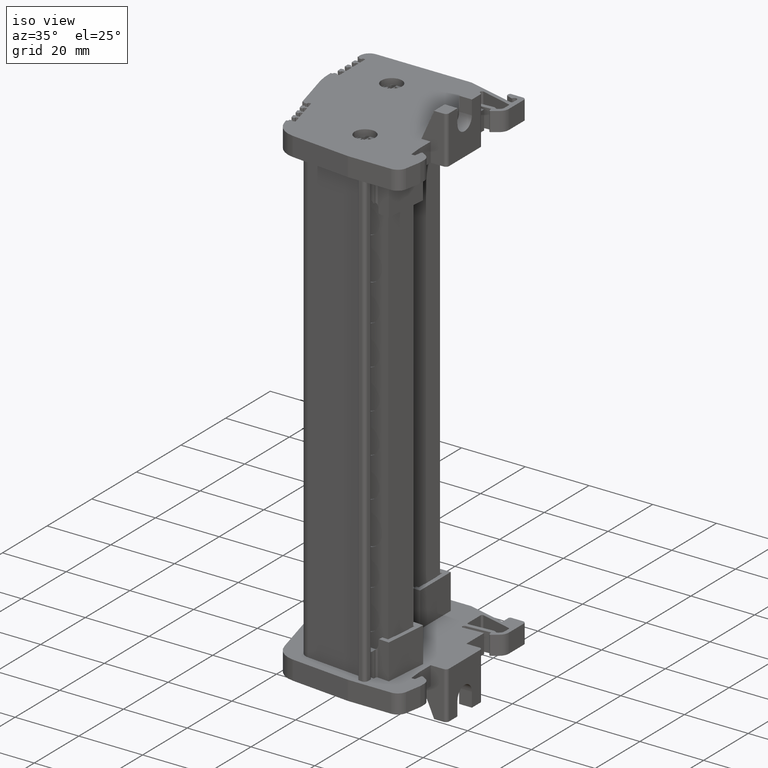
[diagram: clean part render]
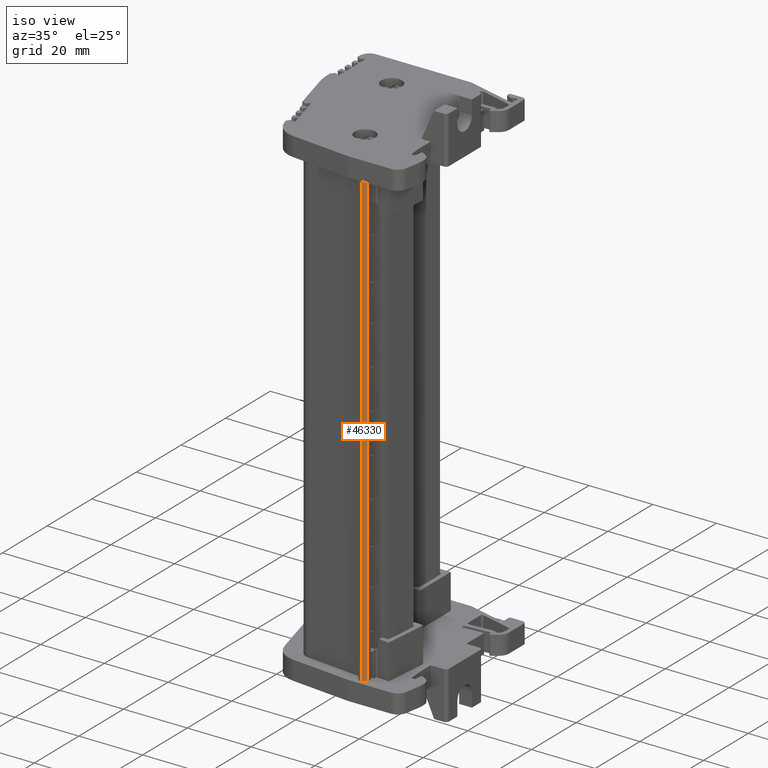
[diagram: same view with one face highlighted and labeled with its STEP entity id]
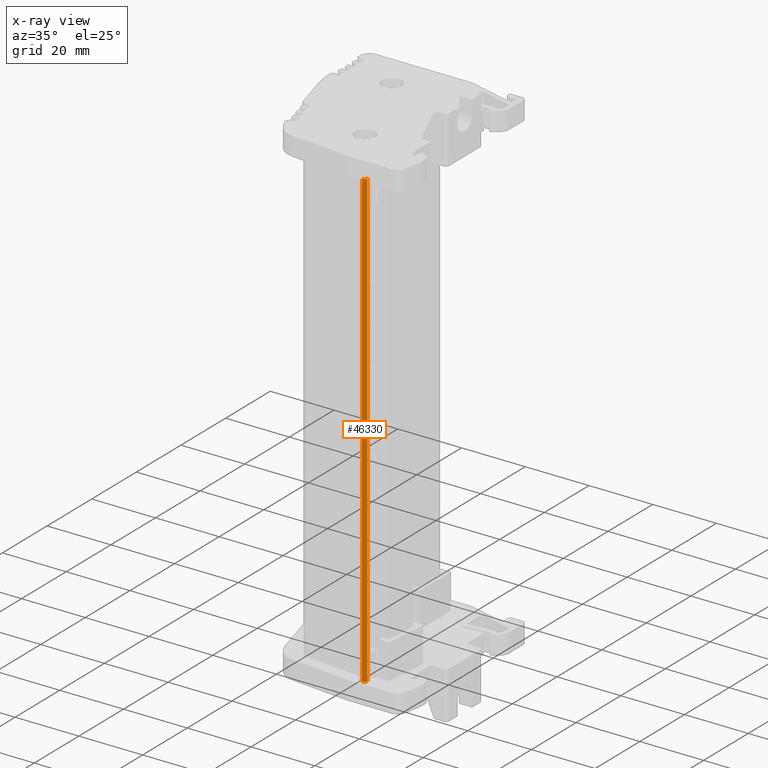
[diagram: x-ray of the same camera — body ghosted, the highlighted face saturated]
A machine part, iso view. The second image highlights one B-rep face of the part: STEP entity #46330.
The next image is the same camera in x-ray: the body ghosted, the highlighted face saturated — about 0% of this face is hidden behind the body in this view.
In plain terms, the highlighted cylindrical surface (edge-blend (fillet) strip) has radius 1 mm, axis along (0, 0, -1).
Its self-contained STEP definition (entity closure, byte-faithful):
#14290 = CARTESIAN_POINT ( 'NONE',  ( 1902.425900825978500, 757.6702232456501600, 116.6204558807792800 ) ) ;
#14291 = DIRECTION ( 'NONE',  ( 1.345608130370957500E-014, 2.026698617924545500E-013, -1.000000000000000000 ) ) ;
#14310 = LINE ( 'NONE', #14290, #55932 ) ;
#19842 = AXIS2_PLACEMENT_3D ( 'NONE', #61646, #61636, #61639 ) ;
#20023 = VERTEX_POINT ( 'NONE', #31779 ) ;
#20059 = VERTEX_POINT ( 'NONE', #31778 ) ;
#29468 = CARTESIAN_POINT ( 'NONE',  ( 1903.535298768044200, 758.5766397038269100, 148.5203038005998100 ) ) ;
#29891 = CARTESIAN_POINT ( 'NONE',  ( 1903.535298768044600, 758.5766397038411200, 5.998782997044521000 ) ) ;
#31778 = CARTESIAN_POINT ( 'NONE',  ( 1902.425900825980500, 757.6702232456724500, 5.998782997044415300 ) ) ;
#31779 = CARTESIAN_POINT ( 'NONE',  ( 1902.425900825978300, 757.6702232456435700, 148.5203038005998100 ) ) ;
#36157 = VERTEX_POINT ( 'NONE', #29468 ) ;
#36246 = VERTEX_POINT ( 'NONE', #29891 ) ;
#44139 = EDGE_CURVE ( 'NONE', #36157, #20023, #54176, .T. ) ;
#44148 = EDGE_CURVE ( 'NONE', #20059, #36246, #54339, .T. ) ;
#44171 = EDGE_CURVE ( 'NONE', #36246, #36157, #73671, .T. ) ;
#46330 = ADVANCED_FACE ( 'NONE', ( #61641 ), #61612, .T. ) ;
#47001 = EDGE_CURVE ( 'NONE', #20023, #20059, #14310, .T. ) ;
#54133 = AXIS2_PLACEMENT_3D ( 'NONE', #75225, #75229, #75204 ) ;
#54176 = CIRCLE ( 'NONE', #54133, 1.000000000000000900 ) ;
#54307 = VECTOR ( 'NONE', #73677, 1000.000000000000000 ) ;
#54339 = CIRCLE ( 'NONE', #54349, 1.000000000000000900 ) ;
#54349 = AXIS2_PLACEMENT_3D ( 'NONE', #75240, #75269, #75279 ) ;
#55932 = VECTOR ( 'NONE', #14291, 1000.000000000000000 ) ;
#61612 = CYLINDRICAL_SURFACE ( 'NONE', #19842, 1.000000000000000900 ) ;
#61636 = DIRECTION ( 'NONE',  ( 1.345608130370957500E-014, 2.026698617924545500E-013, -1.000000000000000000 ) ) ;
#61639 = DIRECTION ( 'NONE',  ( 0.0000000000000000000, 1.000000000000000000, 2.081668171172166700E-013 ) ) ;
#61641 = FACE_OUTER_BOUND ( 'NONE', #76551, .T. ) ;
#61646 = CARTESIAN_POINT ( 'NONE',  ( 1902.539104039747100, 758.6637951013266300, 116.6204558807794900 ) ) ;
#67166 = ORIENTED_EDGE ( 'NONE', *, *, #47001, .T. ) ;
#67195 = ORIENTED_EDGE ( 'NONE', *, *, #44139, .T. ) ;
#67245 = ORIENTED_EDGE ( 'NONE', *, *, #44171, .T. ) ;
#67343 = ORIENTED_EDGE ( 'NONE', *, *, #44148, .T. ) ;
#73671 = LINE ( 'NONE', #73712, #54307 ) ;
#73677 = DIRECTION ( 'NONE',  ( 4.242618870408120100E-015, -3.711780915560832500E-016, 1.000000000000000000 ) ) ;
#73712 = CARTESIAN_POINT ( 'NONE',  ( 1903.535298737838500, 758.5766393585722700, 116.6204558807863200 ) ) ;
#75204 = DIRECTION ( 'NONE',  ( 0.0000000000000000000, 1.000000000000000000, 1.942890293094022200E-013 ) ) ;
#75225 = CARTESIAN_POINT ( 'NONE',  ( 1902.539104039746700, 758.6637951013201500, 148.5203038005998100 ) ) ;
#75229 = DIRECTION ( 'NONE',  ( 1.345608130370957500E-014, 2.026698617924545500E-013, -1.000000000000000000 ) ) ;
#75240 = CARTESIAN_POINT ( 'NONE',  ( 1902.539104039748700, 758.6637951013490200, 5.998782997044621400 ) ) ;
#75269 = DIRECTION ( 'NONE',  ( -1.345608130370957500E-014, -2.026698617924545500E-013, 1.000000000000000000 ) ) ;
#75279 = DIRECTION ( 'NONE',  ( 0.0000000000000000000, 1.000000000000000000, 2.029626466892862500E-013 ) ) ;
#76551 = EDGE_LOOP ( 'NONE', ( #67343, #67245, #67195, #67166 ) ) ;